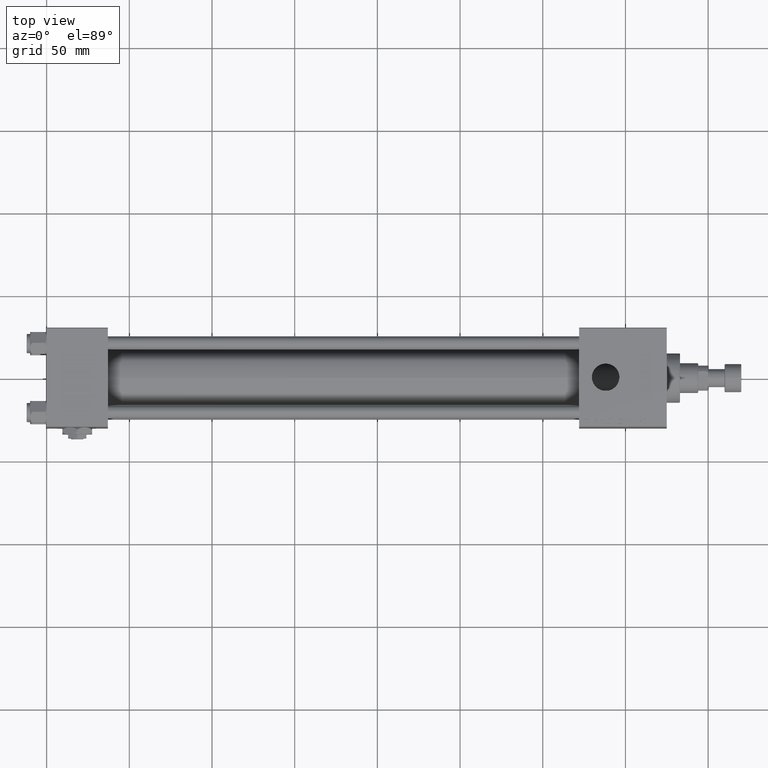
[diagram: clean part render]
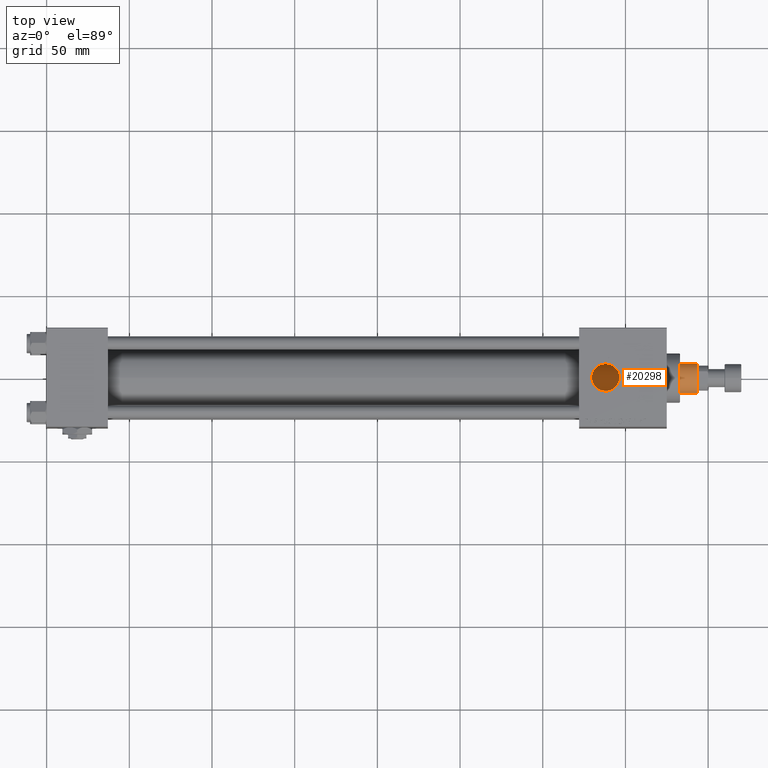
[diagram: same view with one face highlighted and labeled with its STEP entity id]
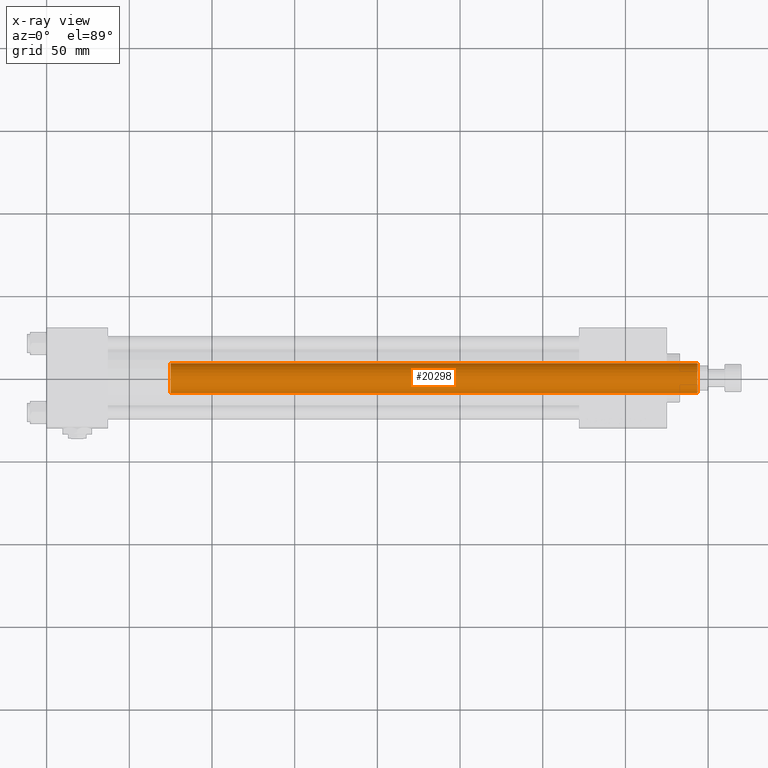
[diagram: x-ray of the same camera — body ghosted, the highlighted face saturated]
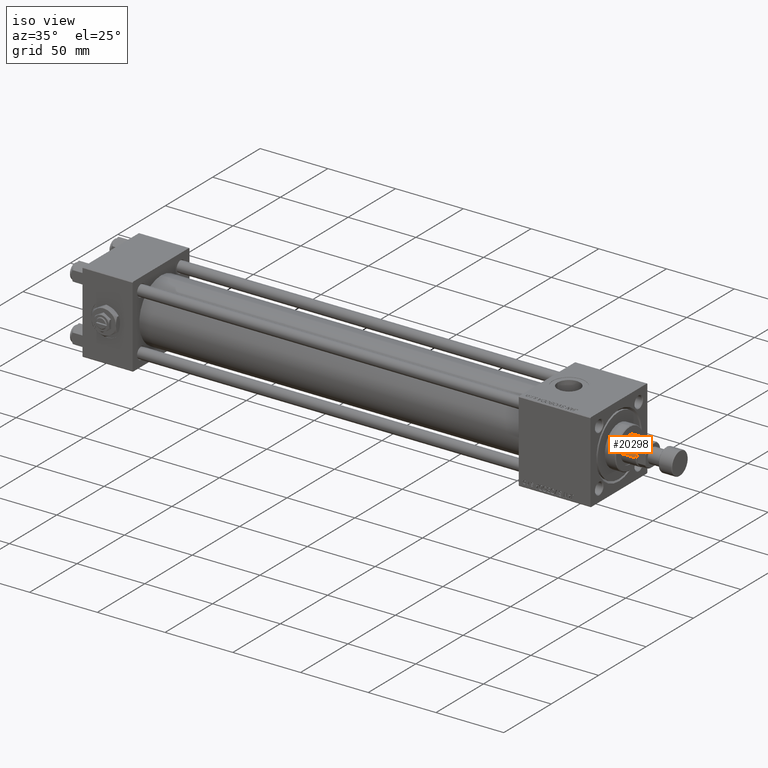
[diagram: same view with one face highlighted and labeled with its STEP entity id]
A machine part, top view. The second image highlights one B-rep face of the part: STEP entity #20298.
The next image is the same camera in x-ray: the body ghosted, the highlighted face saturated — about 0% of this face is hidden behind the body in this view.
A second angle (iso view) of the same face is appended — the face is thin or edge-on in the first view.
In plain terms, the highlighted cylindrical surface (edge-blend (fillet) strip) has radius 9 mm, axis along (-1, 0, 0).
Its self-contained STEP definition (entity closure, byte-faithful):
#1008 = CIRCLE ( 'NONE', #29043, 9.000000000000000000 ) ;
#8188 = CARTESIAN_POINT ( 'NONE',  ( 0.000000000000000000, 0.000000000000000000, 357.0000000000000000 ) ) ;
#8722 = DIRECTION ( 'NONE',  ( -1.000000000000000000, 0.000000000000000000, 0.000000000000000000 ) ) ;
#9266 = VERTEX_POINT ( 'NONE', #21374 ) ;
#9815 = CARTESIAN_POINT ( 'NONE',  ( -9.000000000000000000, 0.000000000000000000, 356.5000000000000568 ) ) ;
#11351 = VERTEX_POINT ( 'NONE', #52129 ) ;
#14589 = VECTOR ( 'NONE', #38789, 1000.000000000000000 ) ;
#16307 = VERTEX_POINT ( 'NONE', #39577 ) ;
#17210 = DIRECTION ( 'NONE',  ( 0.000000000000000000, 0.000000000000000000, -1.000000000000000000 ) ) ;
#17401 = EDGE_LOOP ( 'NONE', ( #20478, #34281, #51415, #31342 ) ) ;
#17406 = DIRECTION ( 'NONE',  ( 0.000000000000000000, 0.000000000000000000, 1.000000000000000000 ) ) ;
#19110 = EDGE_CURVE ( 'NONE', #11351, #37910, #30420, .T. ) ;
#20150 = CYLINDRICAL_SURFACE ( 'NONE', #38090, 9.000000000000000000 ) ;
#20241 = AXIS2_PLACEMENT_3D ( 'NONE', #45420, #17210, #52602 ) ;
#20298 = ADVANCED_FACE ( 'NONE', ( #25442 ), #20150, .T. ) ;
#20478 = ORIENTED_EDGE ( 'NONE', *, *, #52175, .F. ) ;
#21374 = CARTESIAN_POINT ( 'NONE',  ( -9.000000000000000000, 0.000000000000000000, 38.00000000000000000 ) ) ;
#21824 = LINE ( 'NONE', #38061, #49675 ) ;
#22548 = CARTESIAN_POINT ( 'NONE',  ( -9.000000000000000000, 0.000000000000000000, 357.0000000000000000 ) ) ;
#25442 = FACE_OUTER_BOUND ( 'NONE', #17401, .T. ) ;
#28391 = DIRECTION ( 'NONE',  ( -0.000000000000000000, -0.000000000000000000, -1.000000000000000000 ) ) ;
#29026 = DIRECTION ( 'NONE',  ( -0.000000000000000000, -0.000000000000000000, -1.000000000000000000 ) ) ;
#29043 = AXIS2_PLACEMENT_3D ( 'NONE', #41089, #17406, #41346 ) ;
#30420 = CIRCLE ( 'NONE', #20241, 9.000000000000000000 ) ;
#31342 = ORIENTED_EDGE ( 'NONE', *, *, #42586, .T. ) ;
#34281 = ORIENTED_EDGE ( 'NONE', *, *, #19110, .T. ) ;
#37910 = VERTEX_POINT ( 'NONE', #9815 ) ;
#38061 = CARTESIAN_POINT ( 'NONE',  ( 9.000000000000000000, 1.102182119232617714E-15, 357.0000000000000000 ) ) ;
#38090 = AXIS2_PLACEMENT_3D ( 'NONE', #8188, #28391, #8722 ) ;
#38789 = DIRECTION ( 'NONE',  ( -0.000000000000000000, -0.000000000000000000, -1.000000000000000000 ) ) ;
#39577 = CARTESIAN_POINT ( 'NONE',  ( 9.000000000000000000, 1.102182119232617714E-15, 38.00000000000000000 ) ) ;
#41089 = CARTESIAN_POINT ( 'NONE',  ( 0.000000000000000000, 0.000000000000000000, 38.00000000000000000 ) ) ;
#41346 = DIRECTION ( 'NONE',  ( 1.000000000000000000, 0.000000000000000000, 0.000000000000000000 ) ) ;
#42586 = EDGE_CURVE ( 'NONE', #9266, #16307, #1008, .T. ) ;
#42781 = LINE ( 'NONE', #22548, #14589 ) ;
#44495 = EDGE_CURVE ( 'NONE', #37910, #9266, #42781, .T. ) ;
#45420 = CARTESIAN_POINT ( 'NONE',  ( 0.000000000000000000, 0.000000000000000000, 356.5000000000000568 ) ) ;
#49675 = VECTOR ( 'NONE', #29026, 1000.000000000000000 ) ;
#51415 = ORIENTED_EDGE ( 'NONE', *, *, #44495, .T. ) ;
#52129 = CARTESIAN_POINT ( 'NONE',  ( 9.000000000000000000, 1.102182119232617714E-15, 356.5000000000000568 ) ) ;
#52175 = EDGE_CURVE ( 'NONE', #11351, #16307, #21824, .T. ) ;
#52602 = DIRECTION ( 'NONE',  ( 1.000000000000000000, 0.000000000000000000, 0.000000000000000000 ) ) ;